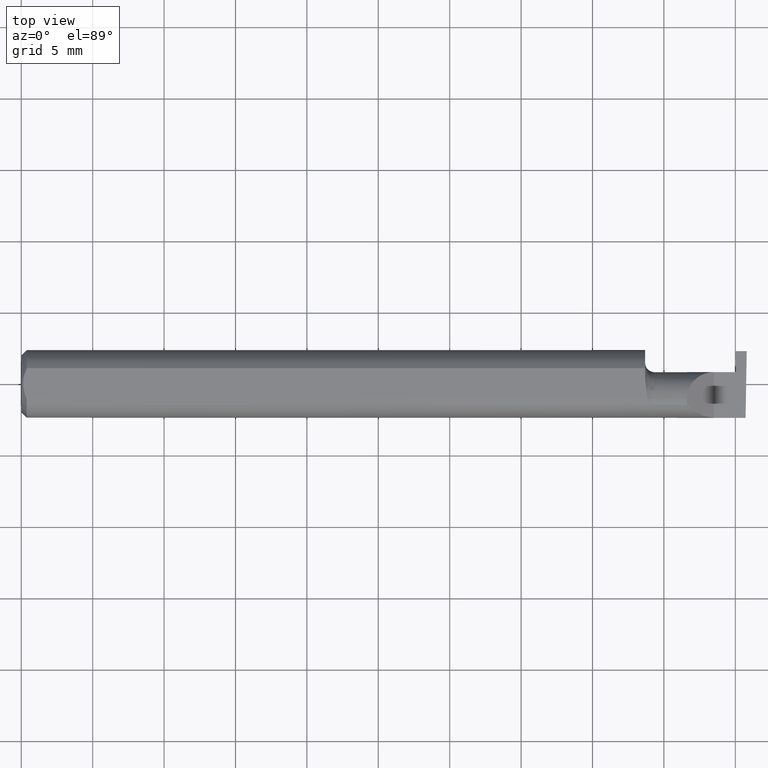
[diagram: clean part render]
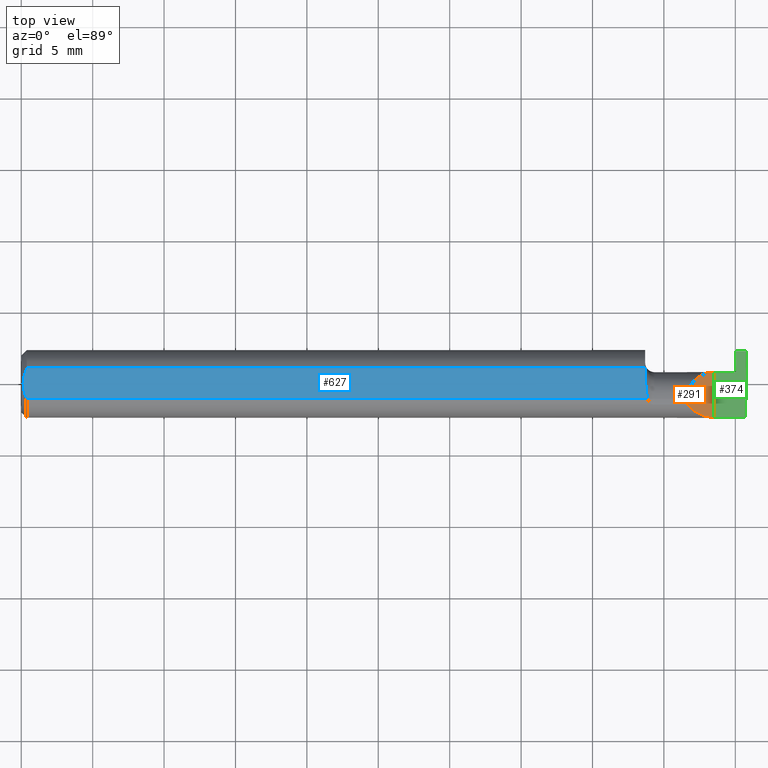
[diagram: same view with three faces highlighted in distinct colors, each labeled with its STEP entity id]
A machine part, top view with three faces highlighted in distinct colors.
Their STEP definitions:

[orange] entity #291 — the highlighted planar face has unit normal (-0.7071, 0, -0.7071).
#5 =( BOUNDED_CURVE ( )  B_SPLINE_CURVE ( 3, ( #224, #756, #652, #766 ),
 .UNSPECIFIED., .F., .T. ) 
 B_SPLINE_CURVE_WITH_KNOTS ( ( 4, 4 ),
 ( 0.000000000000000000, 1.570796326794896558 ),
 .UNSPECIFIED. ) 
 CURVE ( )  GEOMETRIC_REPRESENTATION_ITEM ( )  RATIONAL_B_SPLINE_CURVE ( ( 1.000000000000000000, 0.8047378541243649375, 0.8047378541243649375, 1.000000000000000000 ) ) 
 REPRESENTATION_ITEM ( '' )  );
#47 = CARTESIAN_POINT ( 'NONE',  ( 1.836620632051322310, -0.05810704225352111840, 0.07337936794867826185 ) ) ;
#57 = CARTESIAN_POINT ( 'NONE',  ( 1.910000000000000142, -0.1000000000000000056, 1.102182119232621301E-17 ) ) ;
#68 = EDGE_CURVE ( 'NONE', #596, #543, #607, .T. ) ;
#79 = EDGE_CURVE ( 'NONE', #640, #665, #150, .T. ) ;
#95 = EDGE_CURVE ( 'NONE', #543, #665, #5, .T. ) ;
#115 = CARTESIAN_POINT ( 'NONE',  ( 1.910000000000000142, -0.09359999999999998876, 1.102182119232621301E-17 ) ) ;
#123 = ORIENTED_EDGE ( 'NONE', *, *, #68, .F. ) ;
#150 = LINE ( 'NONE', #695, #329 ) ;
#158 = CARTESIAN_POINT ( 'NONE',  ( 1.835000000000000409, -0.04259999999999998510, 0.07499999999999999722 ) ) ;
#163 = ORIENTED_EDGE ( 'NONE', *, *, #79, .T. ) ;
#178 = EDGE_CURVE ( 'NONE', #640, #596, #742, .T. ) ;
#224 = CARTESIAN_POINT ( 'NONE',  ( 1.835000000000000409, -0.04259999999999998510, 0.07499999999999999722 ) ) ;
#230 = AXIS2_PLACEMENT_3D ( 'NONE', #57, #530, #770 ) ;
#291 = ADVANCED_FACE ( 'NONE', ( #355 ), #672, .F. ) ;
#329 = VECTOR ( 'NONE', #762, 39.37007874015748143 ) ;
#340 = CARTESIAN_POINT ( 'NONE',  ( 1.836620632051322310, -0.05810704225352111840, 0.07337936794867826185 ) ) ;
#355 = FACE_OUTER_BOUND ( 'NONE', #702, .T. ) ;
#361 = CARTESIAN_POINT ( 'NONE',  ( 1.836620632051322310, -0.05810704225352111840, 0.07337936794867826185 ) ) ;
#399 = CARTESIAN_POINT ( 'NONE',  ( 1.835000000000000409, -0.04259999999999998510, 0.07499999999999999722 ) ) ;
#409 = CARTESIAN_POINT ( 'NONE',  ( 1.910000000000000142, 0.03240000000000002600, 1.102182119232621301E-17 ) ) ;
#472 = CARTESIAN_POINT ( 'NONE',  ( 1.854690286057537829, -0.08092595952420826577, 0.05530971394246238237 ) ) ;
#477 = ORIENTED_EDGE ( 'NONE', *, *, #178, .F. ) ;
#530 = DIRECTION ( 'NONE',  ( -0.7071067811865490160, 0.000000000000000000, -0.7071067811865460184 ) ) ;
#543 = VERTEX_POINT ( 'NONE', #158 ) ;
#573 = CARTESIAN_POINT ( 'NONE',  ( 1.835542168554754827, -0.05300374992736064245, 0.07445783144524570352 ) ) ;
#595 = CARTESIAN_POINT ( 'NONE',  ( 1.880893035518783396, -0.09359999999999998876, 0.02910696448121675300 ) ) ;
#596 = VERTEX_POINT ( 'NONE', #361 ) ;
#597 = CARTESIAN_POINT ( 'NONE',  ( 1.910000000000000142, -0.09359999999999998876, 1.102182119232621301E-17 ) ) ;
#607 =( BOUNDED_CURVE ( )  B_SPLINE_CURVE ( 3, ( #340, #573, #704, #399 ),
 .UNSPECIFIED., .F., .T. ) 
 B_SPLINE_CURVE_WITH_KNOTS ( ( 4, 4 ),
 ( 6.074922494366329140, 6.283185307179586232 ),
 .UNSPECIFIED. ) 
 CURVE ( )  GEOMETRIC_REPRESENTATION_ITEM ( )  RATIONAL_B_SPLINE_CURVE ( ( 1.000000000000000000, 0.9963888149483995926, 0.9963888149483995926, 1.000000000000000000 ) ) 
 REPRESENTATION_ITEM ( '' )  );
#640 = VERTEX_POINT ( 'NONE', #597 ) ;
#652 = CARTESIAN_POINT ( 'NONE',  ( 1.866066017177982594, 0.03240000000000000518, 0.04393398282201787380 ) ) ;
#665 = VERTEX_POINT ( 'NONE', #409 ) ;
#672 = PLANE ( 'NONE',  #230 ) ;
#695 = CARTESIAN_POINT ( 'NONE',  ( 1.910000000000000142, -0.1000000000000000056, 1.102182119232621301E-17 ) ) ;
#702 = EDGE_LOOP ( 'NONE', ( #123, #477, #163, #757 ) ) ;
#704 = CARTESIAN_POINT ( 'NONE',  ( 1.835000000000000409, -0.04781600192481531147, 0.07499999999999999722 ) ) ;
#742 =( BOUNDED_CURVE ( )  B_SPLINE_CURVE ( 3, ( #115, #595, #472, #47 ),
 .UNSPECIFIED., .F., .T. ) 
 B_SPLINE_CURVE_WITH_KNOTS ( ( 4, 4 ),
 ( 4.712388980384689674, 5.613420356061718408 ),
 .UNSPECIFIED. ) 
 CURVE ( )  GEOMETRIC_REPRESENTATION_ITEM ( )  RATIONAL_B_SPLINE_CURVE ( ( 1.000000000000000000, 0.9334817841311876530, 0.9334817841311876530, 1.000000000000000000 ) ) 
 REPRESENTATION_ITEM ( '' )  );
#756 = CARTESIAN_POINT ( 'NONE',  ( 1.835000000000000187, 0.001333982822017888053, 0.07499999999999998335 ) ) ;
#757 = ORIENTED_EDGE ( 'NONE', *, *, #95, .F. ) ;
#762 = DIRECTION ( 'NONE',  ( -0.000000000000000000, 1.000000000000000000, -0.000000000000000000 ) ) ;
#766 = CARTESIAN_POINT ( 'NONE',  ( 1.910000000000000142, 0.03240000000000002600, 1.102182119232621301E-17 ) ) ;
#770 = DIRECTION ( 'NONE',  ( -0.7071067811865460184, 0.000000000000000000, 0.7071067811865490160 ) ) ;

[blue] entity #627 — the highlighted planar face has unit normal (0, -0, 1).
#9 = EDGE_CURVE ( 'NONE', #605, #407, #462, .T. ) ;
#10 = ORIENTED_EDGE ( 'NONE', *, *, #398, .T. ) ;
#33 = CARTESIAN_POINT ( 'NONE',  ( 0.01499999999999999944, -0.04209513035969836975, 0.08359999999999999376 ) ) ;
#56 = CARTESIAN_POINT ( 'NONE',  ( 0.01499999999999999598, 0.04209513035969836975, 0.08359999999999999376 ) ) ;
#64 = LINE ( 'NONE', #71, #223 ) ;
#71 = CARTESIAN_POINT ( 'NONE',  ( 0.000000000000000000, -0.04209513035969836975, 0.08359999999999999376 ) ) ;
#92 = VECTOR ( 'NONE', #237, 39.37007874015748143 ) ;
#110 = CARTESIAN_POINT ( 'NONE',  ( 0.009539353699420717939, -0.02875682547511373283, 0.08359999999999997988 ) ) ;
#121 = CARTESIAN_POINT ( 'NONE',  ( 2.000000000000000000, -0.09360000000000003040, 0.08359999999999999376 ) ) ;
#132 = CARTESIAN_POINT ( 'NONE',  ( 0.004999999999999977553, 0.007308422719211852582, 0.08359999999999999376 ) ) ;
#135 = CARTESIAN_POINT ( 'NONE',  ( 0.01499999999999999598, 0.04209513035969836975, 0.08359999999999999376 ) ) ;
#151 = ORIENTED_EDGE ( 'NONE', *, *, #9, .T. ) ;
#176 = CARTESIAN_POINT ( 'NONE',  ( 0.004999999999999986226, 1.025183015402604432E-17, 0.08359999999999999376 ) ) ;
#188 = VECTOR ( 'NONE', #507, 39.37007874015748143 ) ;
#210 = LINE ( 'NONE', #339, #188 ) ;
#223 = VECTOR ( 'NONE', #309, 39.37007874015748143 ) ;
#227 = CARTESIAN_POINT ( 'NONE',  ( 1.726129652885479260, -0.04209513035970094408, 0.08359999999999999376 ) ) ;
#234 = EDGE_CURVE ( 'NONE', #356, #605, #725, .T. ) ;
#237 = DIRECTION ( 'NONE',  ( -1.000000000000000000, -0.000000000000000000, -0.000000000000000000 ) ) ;
#238 = EDGE_LOOP ( 'NONE', ( #10, #689, #345, #372, #151, #644 ) ) ;
#246 = EDGE_CURVE ( 'NONE', #630, #414, #385, .T. ) ;
#290 = CARTESIAN_POINT ( 'NONE',  ( 1.721463898467976428, -0.005727447913487648465, 0.08359999999999997988 ) ) ;
#295 = CARTESIAN_POINT ( 'NONE',  ( 0.01206089165507020187, -0.03555991978469316694, 0.08359999999999999376 ) ) ;
#296 = CARTESIAN_POINT ( 'NONE',  ( 1.719999999999999751, 0.01227294415283364248, 0.08359999999999999376 ) ) ;
#303 = CARTESIAN_POINT ( 'NONE',  ( 0.000000000000000000, 0.04209513035969836975, 0.08359999999999999376 ) ) ;
#309 = DIRECTION ( 'NONE',  ( 1.000000000000000000, 0.000000000000000000, 0.000000000000000000 ) ) ;
#339 = CARTESIAN_POINT ( 'NONE',  ( 1.719999999999999751, -0.09360000000000003040, 0.08359999999999999376 ) ) ;
#345 = ORIENTED_EDGE ( 'NONE', *, *, #446, .T. ) ;
#347 = DIRECTION ( 'NONE',  ( 1.000000000000000000, 0.000000000000000000, -0.000000000000000000 ) ) ;
#356 = VERTEX_POINT ( 'NONE', #744 ) ;
#372 = ORIENTED_EDGE ( 'NONE', *, *, #234, .T. ) ;
#377 = CARTESIAN_POINT ( 'NONE',  ( 0.005981829149300633627, 0.01454044632356571096, 0.08359999999999997988 ) ) ;
#385 = B_SPLINE_CURVE_WITH_KNOTS ( 'NONE', 3,
 ( #227, #410, #655, #290, #608, #296 ),
 .UNSPECIFIED., .F., .F.,
 ( 4, 2, 4 ),
 ( 0.009672910729349781800, 0.01035804079918456987, 0.01104317086901935793 ),
 .UNSPECIFIED. ) ;
#388 = CARTESIAN_POINT ( 'NONE',  ( 0.01203648650249646186, 0.03550565407121129141, 0.08359999999999997988 ) ) ;
#398 = EDGE_CURVE ( 'NONE', #546, #630, #64, .T. ) ;
#404 = DIRECTION ( 'NONE',  ( 0.000000000000000000, -0.000000000000000000, 1.000000000000000000 ) ) ;
#407 = VERTEX_POINT ( 'NONE', #551 ) ;
#410 = CARTESIAN_POINT ( 'NONE',  ( 1.726082007218903369, -0.03301619840524110810, 0.08359999999999997988 ) ) ;
#412 = CARTESIAN_POINT ( 'NONE',  ( 0.01499999999999999944, -0.04209513035969836975, 0.08359999999999999376 ) ) ;
#414 = VERTEX_POINT ( 'NONE', #494 ) ;
#446 = EDGE_CURVE ( 'NONE', #414, #356, #210, .T. ) ;
#462 = B_SPLINE_CURVE_WITH_KNOTS ( 'NONE', 3,
 ( #135, #388, #501, #377, #132, #745 ),
 .UNSPECIFIED., .F., .F.,
 ( 4, 2, 4 ),
 ( 0.001518921481343300838, 0.002066509374312901649, 0.002614097267282502243 ),
 .UNSPECIFIED. ) ;
#478 = PLANE ( 'NONE',  #532 ) ;
#494 = CARTESIAN_POINT ( 'NONE',  ( 1.719999999999999751, 0.01227294415283364248, 0.08359999999999999376 ) ) ;
#501 = CARTESIAN_POINT ( 'NONE',  ( 0.009492654797564226143, 0.02859466010166631864, 0.08360000000000000764 ) ) ;
#506 = B_SPLINE_CURVE_WITH_KNOTS ( 'NONE', 3,
 ( #176, #724, #654, #110, #295, #412 ),
 .UNSPECIFIED., .F., .F.,
 ( 4, 2, 4 ),
 ( 0.002614097267282502243, 0.003163218599391118095, 0.003712339931499734381 ),
 .UNSPECIFIED. ) ;
#507 = DIRECTION ( 'NONE',  ( -0.000000000000000000, 1.000000000000000000, 0.000000000000000000 ) ) ;
#529 = CARTESIAN_POINT ( 'NONE',  ( 1.726129652885479260, -0.04209513035970094408, 0.08359999999999999376 ) ) ;
#532 = AXIS2_PLACEMENT_3D ( 'NONE', #121, #404, #347 ) ;
#546 = VERTEX_POINT ( 'NONE', #33 ) ;
#551 = CARTESIAN_POINT ( 'NONE',  ( 0.004999999999999986226, 1.025183015402604432E-17, 0.08359999999999999376 ) ) ;
#605 = VERTEX_POINT ( 'NONE', #56 ) ;
#608 = CARTESIAN_POINT ( 'NONE',  ( 1.719999999999999973, 0.003280657920457031966, 0.08359999999999999376 ) ) ;
#627 = ADVANCED_FACE ( 'NONE', ( #668 ), #478, .T. ) ;
#630 = VERTEX_POINT ( 'NONE', #529 ) ;
#644 = ORIENTED_EDGE ( 'NONE', *, *, #667, .T. ) ;
#654 = CARTESIAN_POINT ( 'NONE',  ( 0.005975039161239316735, -0.01453776427033148973, 0.08360000000000000764 ) ) ;
#655 = CARTESIAN_POINT ( 'NONE',  ( 1.724570820222979917, -0.02392027542784326555, 0.08360000000000000764 ) ) ;
#667 = EDGE_CURVE ( 'NONE', #407, #546, #506, .T. ) ;
#668 = FACE_OUTER_BOUND ( 'NONE', #238, .T. ) ;
#689 = ORIENTED_EDGE ( 'NONE', *, *, #246, .T. ) ;
#724 = CARTESIAN_POINT ( 'NONE',  ( 0.004999999999999974083, -0.007328888879231052096, 0.08359999999999997988 ) ) ;
#725 = LINE ( 'NONE', #303, #92 ) ;
#744 = CARTESIAN_POINT ( 'NONE',  ( 1.719999999999999751, 0.04209513035969834893, 0.08359999999999999376 ) ) ;
#745 = CARTESIAN_POINT ( 'NONE',  ( 0.004999999999999986226, 1.025183015402604432E-17, 0.08359999999999999376 ) ) ;

[green] entity #374 — the highlighted planar face has unit normal (-0, 0, -1).
#19 = VECTOR ( 'NONE', #457, 39.37007874015748143 ) ;
#24 = LINE ( 'NONE', #381, #73 ) ;
#28 = EDGE_CURVE ( 'NONE', #283, #736, #159, .T. ) ;
#39 = EDGE_CURVE ( 'NONE', #120, #640, #647, .T. ) ;
#73 = VECTOR ( 'NONE', #373, 39.37007874015748854 ) ;
#79 = EDGE_CURVE ( 'NONE', #640, #665, #150, .T. ) ;
#119 = EDGE_CURVE ( 'NONE', #120, #458, #401, .T. ) ;
#120 = VERTEX_POINT ( 'NONE', #274 ) ;
#128 = VECTOR ( 'NONE', #215, 39.37007874015748143 ) ;
#150 = LINE ( 'NONE', #695, #329 ) ;
#153 = CARTESIAN_POINT ( 'NONE',  ( 1.719999999999999973, 0.03240000000000001906, 3.429011037612604807E-17 ) ) ;
#157 = ORIENTED_EDGE ( 'NONE', *, *, #119, .T. ) ;
#159 = LINE ( 'NONE', #405, #128 ) ;
#160 = ORIENTED_EDGE ( 'NONE', *, *, #737, .T. ) ;
#171 = EDGE_LOOP ( 'NONE', ( #609, #157, #523, #160, #552, #635, #619 ) ) ;
#184 = CARTESIAN_POINT ( 'NONE',  ( 1.969499999999999806, 0.03240000000000000518, 3.428996833357358890E-17 ) ) ;
#215 = DIRECTION ( 'NONE',  ( -1.000000000000000000, -7.220223772318049548E-16, 1.224646799147358877E-16 ) ) ;
#274 = CARTESIAN_POINT ( 'NONE',  ( 1.996789369178486373, -0.09359999999634724399, 1.965990811775635199E-19 ) ) ;
#283 = VERTEX_POINT ( 'NONE', #364 ) ;
#329 = VECTOR ( 'NONE', #762, 39.37007874015748143 ) ;
#344 = DIRECTION ( 'NONE',  ( 0.01744642479411314534, 0.9998477995484629233, -2.135106780035503491E-18 ) ) ;
#354 = VECTOR ( 'NONE', #755, 39.37007874015748143 ) ;
#364 = CARTESIAN_POINT ( 'NONE',  ( 1.970510542377208685, 0.03240000000000000518, 1.805708494317155471E-18 ) ) ;
#367 = PLANE ( 'NONE',  #564 ) ;
#373 = DIRECTION ( 'NONE',  ( 0.01742050049977865445, -0.9998482515673751125, -2.130797594925077101E-18 ) ) ;
#374 = ADVANCED_FACE ( 'NONE', ( #559 ), #367, .F. ) ;
#381 = CARTESIAN_POINT ( 'NONE',  ( 1.972825615918400111, -0.1004734632187760518, 3.327902248433222755E-18 ) ) ;
#391 = CARTESIAN_POINT ( 'NONE',  ( 1.996678706298551376, -0.09994204647866641866, 4.067411700507134861E-19 ) ) ;
#401 = LINE ( 'NONE', #391, #735 ) ;
#405 = CARTESIAN_POINT ( 'NONE',  ( 2.000000000000000000, 0.03240000000000002600, 1.170710448583159060E-32 ) ) ;
#409 = CARTESIAN_POINT ( 'NONE',  ( 1.910000000000000142, 0.03240000000000002600, 1.102182119232621301E-17 ) ) ;
#431 = VECTOR ( 'NONE', #571, 39.37007874015748143 ) ;
#451 = LINE ( 'NONE', #153, #354 ) ;
#457 = DIRECTION ( 'NONE',  ( -1.000000000000000000, -0.000000000000000000, -0.000000000000000000 ) ) ;
#458 = VERTEX_POINT ( 'NONE', #524 ) ;
#492 = EDGE_CURVE ( 'NONE', #665, #736, #451, .T. ) ;
#493 = CARTESIAN_POINT ( 'NONE',  ( 1.969499999999999806, 0.09040000000000000813, -3.918869757271545852E-19 ) ) ;
#523 = ORIENTED_EDGE ( 'NONE', *, *, #540, .F. ) ;
#524 = CARTESIAN_POINT ( 'NONE',  ( 2.000000000000000444, 0.09040000000000000813, 6.269377719834979509E-17 ) ) ;
#540 = EDGE_CURVE ( 'NONE', #719, #458, #638, .T. ) ;
#552 = ORIENTED_EDGE ( 'NONE', *, *, #28, .T. ) ;
#559 = FACE_OUTER_BOUND ( 'NONE', #171, .T. ) ;
#564 = AXIS2_PLACEMENT_3D ( 'NONE', #624, #612, #616 ) ;
#565 = CARTESIAN_POINT ( 'NONE',  ( 1.899999999999999911, 0.09040000000000000813, -3.918869757271545852E-19 ) ) ;
#571 = DIRECTION ( 'NONE',  ( 1.000000000000000000, -0.000000000000000000, -0.000000000000000000 ) ) ;
#597 = CARTESIAN_POINT ( 'NONE',  ( 1.910000000000000142, -0.09359999999999998876, 1.102182119232621301E-17 ) ) ;
#609 = ORIENTED_EDGE ( 'NONE', *, *, #39, .F. ) ;
#612 = DIRECTION ( 'NONE',  ( -1.224646799147358877E-16, 0.000000000000000000, -1.000000000000000000 ) ) ;
#616 = DIRECTION ( 'NONE',  ( -1.000000000000000000, 0.000000000000000000, 1.224646799147358877E-16 ) ) ;
#619 = ORIENTED_EDGE ( 'NONE', *, *, #79, .F. ) ;
#624 = CARTESIAN_POINT ( 'NONE',  ( 2.000000000000000000, -0.1000000000000000056, 0.000000000000000000 ) ) ;
#635 = ORIENTED_EDGE ( 'NONE', *, *, #492, .F. ) ;
#638 = LINE ( 'NONE', #565, #431 ) ;
#640 = VERTEX_POINT ( 'NONE', #597 ) ;
#647 = LINE ( 'NONE', #759, #19 ) ;
#665 = VERTEX_POINT ( 'NONE', #409 ) ;
#695 = CARTESIAN_POINT ( 'NONE',  ( 1.910000000000000142, -0.1000000000000000056, 1.102182119232621301E-17 ) ) ;
#719 = VERTEX_POINT ( 'NONE', #493 ) ;
#735 = VECTOR ( 'NONE', #344, 39.37007874015748143 ) ;
#736 = VERTEX_POINT ( 'NONE', #184 ) ;
#737 = EDGE_CURVE ( 'NONE', #719, #283, #24, .T. ) ;
#755 = DIRECTION ( 'NONE',  ( 1.000000000000000000, 0.000000000000000000, 0.000000000000000000 ) ) ;
#759 = CARTESIAN_POINT ( 'NONE',  ( 2.999519565323743132E-32, -0.09359999999999998876, 2.449293598294717754E-16 ) ) ;
#762 = DIRECTION ( 'NONE',  ( -0.000000000000000000, 1.000000000000000000, -0.000000000000000000 ) ) ;